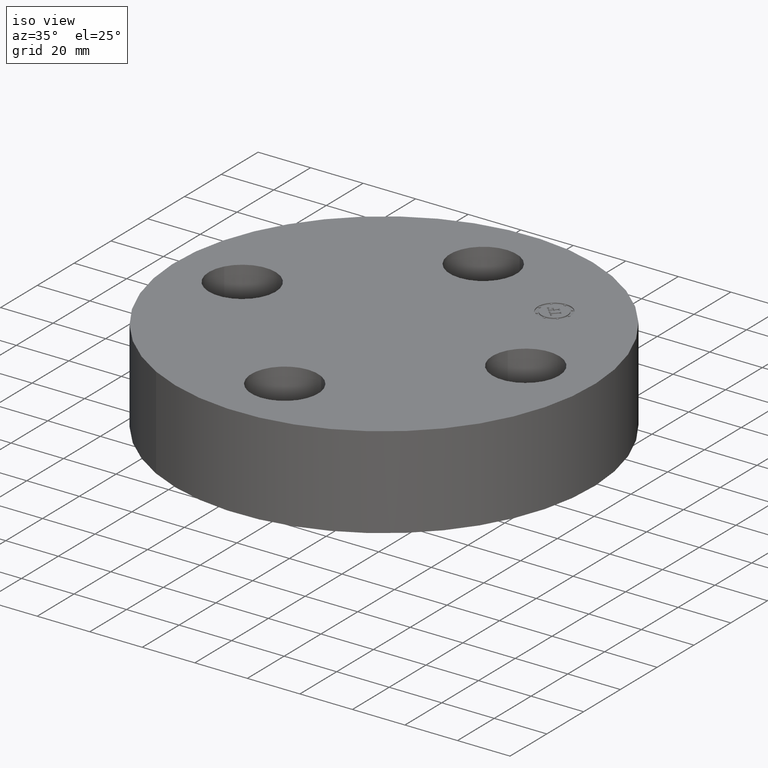
[diagram: clean part render]
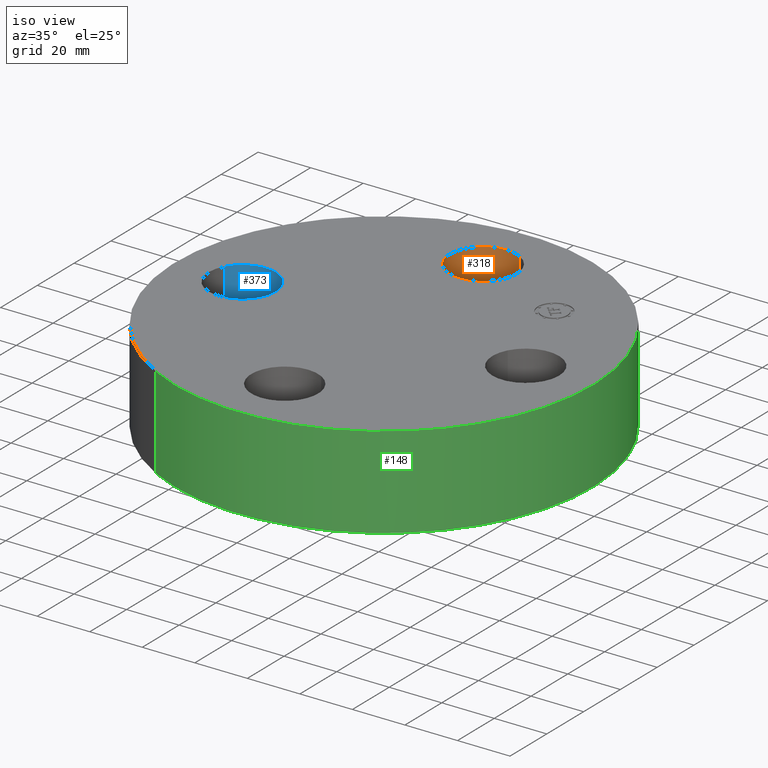
[diagram: same view with three faces highlighted in distinct colors, each labeled with its STEP entity id]
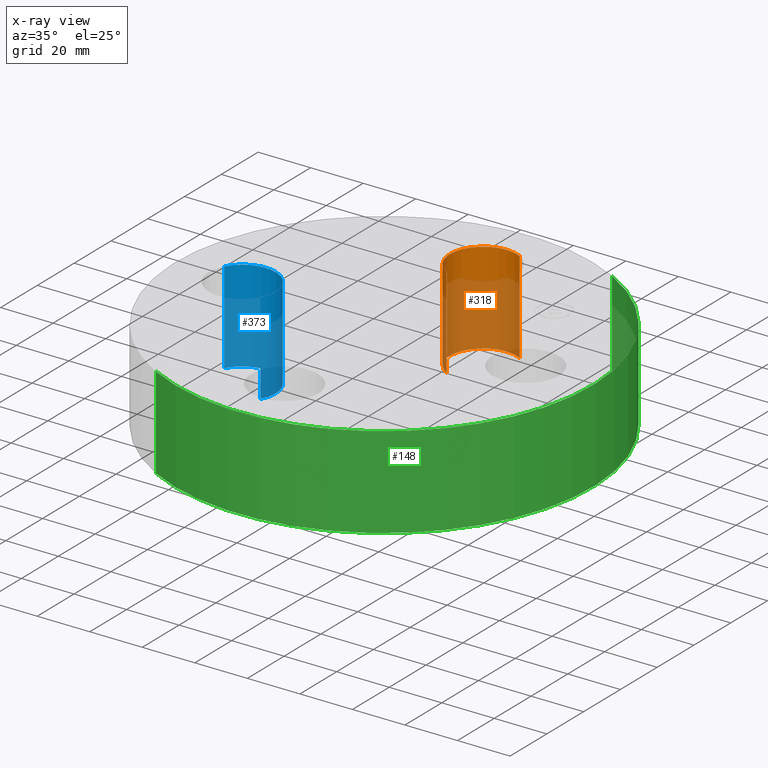
[diagram: x-ray of the same camera — body ghosted, the three highlighted faces saturated]
A machine part, iso view with three faces highlighted in distinct colors.
The next image is the same camera in x-ray (body ghosted, the three faces saturated) — at least one of them is partly hidden behind the body in this view.
Their STEP definitions:

[orange] entity #318 — the highlighted cylindrical surface (partial cylindrical patch) has radius 12.7 mm, axis along (0, 0, -1).
#271=AXIS2_PLACEMENT_3D('Circle Axis2P3D',#269,#270,$) ;
#291=AXIS2_PLACEMENT_3D('Cylinder Axis2P3D',#288,#289,#290) ;
#309=AXIS2_PLACEMENT_3D('Circle Axis2P3D',#307,#308,$) ;
#269=CARTESIAN_POINT('Axis2P3D Location',(-2.79741234551E-016,2.12500000001,0.)) ;
#273=CARTESIAN_POINT('Vertex',(-0.239712769303,1.68620871906,0.)) ;
#275=CARTESIAN_POINT('Vertex',(0.239712769303,2.56379128096,0.)) ;
#288=CARTESIAN_POINT('Axis2P3D Location',(-3.9035616723E-016,2.12500000001,1.37606299213)) ;
#293=CARTESIAN_POINT('Line Origine',(-0.239712769303,1.68620871906,0.690000000003)) ;
#297=CARTESIAN_POINT('Vertex',(-0.239712769303,1.68620871906,1.38000000001)) ;
#300=CARTESIAN_POINT('Line Origine',(0.239712769303,2.56379128096,0.690000000003)) ;
#304=CARTESIAN_POINT('Vertex',(0.239712769303,2.56379128096,1.38000000001)) ;
#307=CARTESIAN_POINT('Axis2P3D Location',(-3.9035616723E-016,2.12500000001,1.38000000001)) ;
#270=DIRECTION('Axis2P3D Direction',(0.,0.,-0.0393700787402)) ;
#289=DIRECTION('Axis2P3D Direction',(0.,0.,-0.0393700787402)) ;
#290=DIRECTION('Axis2P3D XDirection',(0.0188750212049,0.0345504945626,0.)) ;
#294=DIRECTION('Vector Direction',(0.,0.,-0.0393700787402)) ;
#301=DIRECTION('Vector Direction',(0.,0.,-0.0393700787402)) ;
#308=DIRECTION('Axis2P3D Direction',(0.,0.,-0.0393700787402)) ;
#295=VECTOR('Line Direction',#294,0.0393700787402) ;
#302=VECTOR('Line Direction',#301,0.0393700787402) ;
#313=ORIENTED_EDGE('',*,*,#299,.F.) ;
#314=ORIENTED_EDGE('',*,*,#277,.T.) ;
#315=ORIENTED_EDGE('',*,*,#306,.T.) ;
#316=ORIENTED_EDGE('',*,*,#311,.F.) ;
#318=ADVANCED_FACE('PartBody',(#317),#292,.F.) ;
#272=CIRCLE('generated circle',#271,0.500000000002) ;
#310=CIRCLE('generated circle',#309,0.500000000002) ;
#292=CYLINDRICAL_SURFACE('generated cylinder',#291,0.500000000002) ;
#277=EDGE_CURVE('',#274,#276,#272,.T.) ;
#299=EDGE_CURVE('',#274,#298,#296,.F.) ;
#306=EDGE_CURVE('',#276,#305,#303,.F.) ;
#311=EDGE_CURVE('',#298,#305,#310,.T.) ;
#312=EDGE_LOOP('',(#313,#314,#315,#316)) ;
#317=FACE_OUTER_BOUND('',#312,.T.) ;
#296=LINE('Line',#293,#295) ;
#303=LINE('Line',#300,#302) ;
#274=VERTEX_POINT('',#273) ;
#276=VERTEX_POINT('',#275) ;
#298=VERTEX_POINT('',#297) ;
#305=VERTEX_POINT('',#304) ;

[blue] entity #373 — the highlighted cylindrical surface (partial cylindrical patch) has radius 12.7 mm, axis along (-0, 0, -1).
#262=AXIS2_PLACEMENT_3D('Circle Axis2P3D',#260,#261,$) ;
#334=AXIS2_PLACEMENT_3D('Cylinder Axis2P3D',#331,#332,#333) ;
#364=AXIS2_PLACEMENT_3D('Circle Axis2P3D',#362,#363,$) ;
#255=CARTESIAN_POINT('Vertex',(-1.68620871906,-0.239712769303,0.)) ;
#257=CARTESIAN_POINT('Vertex',(-2.56379128096,0.239712769303,0.)) ;
#260=CARTESIAN_POINT('Axis2P3D Location',(-2.12500000001,-1.39870617276E-016,0.)) ;
#331=CARTESIAN_POINT('Axis2P3D Location',(-2.12500000001,-2.6023744482E-016,1.37606299213)) ;
#336=CARTESIAN_POINT('Line Origine',(-1.68620871906,-0.239712769303,0.690000000003)) ;
#340=CARTESIAN_POINT('Vertex',(-1.68620871906,-0.239712769303,1.38000000001)) ;
#343=CARTESIAN_POINT('Line Origine',(-2.56379128096,0.239712769303,0.690000000003)) ;
#347=CARTESIAN_POINT('Vertex',(-2.56379128096,0.239712769303,1.38000000001)) ;
#362=CARTESIAN_POINT('Axis2P3D Location',(-2.12500000001,-2.6023744482E-016,1.38000000001)) ;
#261=DIRECTION('Axis2P3D Direction',(0.,0.,-0.0393700787402)) ;
#332=DIRECTION('Axis2P3D Direction',(-0.,0.,-0.0393700787402)) ;
#333=DIRECTION('Axis2P3D XDirection',(-0.0345504945626,0.0188750212049,0.)) ;
#337=DIRECTION('Vector Direction',(0.,0.,-0.0393700787402)) ;
#344=DIRECTION('Vector Direction',(0.,0.,-0.0393700787402)) ;
#363=DIRECTION('Axis2P3D Direction',(-0.,0.,-0.0393700787402)) ;
#338=VECTOR('Line Direction',#337,0.0393700787402) ;
#345=VECTOR('Line Direction',#344,0.0393700787402) ;
#368=ORIENTED_EDGE('',*,*,#349,.F.) ;
#369=ORIENTED_EDGE('',*,*,#264,.T.) ;
#370=ORIENTED_EDGE('',*,*,#342,.T.) ;
#371=ORIENTED_EDGE('',*,*,#366,.F.) ;
#373=ADVANCED_FACE('PartBody',(#372),#335,.F.) ;
#263=CIRCLE('generated circle',#262,0.500000000002) ;
#365=CIRCLE('generated circle',#364,0.500000000002) ;
#335=CYLINDRICAL_SURFACE('generated cylinder',#334,0.500000000002) ;
#264=EDGE_CURVE('',#258,#256,#263,.T.) ;
#342=EDGE_CURVE('',#256,#341,#339,.F.) ;
#349=EDGE_CURVE('',#258,#348,#346,.F.) ;
#366=EDGE_CURVE('',#348,#341,#365,.T.) ;
#367=EDGE_LOOP('',(#368,#369,#370,#371)) ;
#372=FACE_OUTER_BOUND('',#367,.T.) ;
#339=LINE('Line',#336,#338) ;
#346=LINE('Line',#343,#345) ;
#256=VERTEX_POINT('',#255) ;
#258=VERTEX_POINT('',#257) ;
#341=VERTEX_POINT('',#340) ;
#348=VERTEX_POINT('',#347) ;

[green] entity #148 — the highlighted cylindrical surface (partial cylindrical patch) has radius 79.375 mm, axis along (0, 0, -1).
#95=AXIS2_PLACEMENT_3D('Cylinder Axis2P3D',#92,#93,#94) ;
#134=AXIS2_PLACEMENT_3D('Circle Axis2P3D',#132,#133,$) ;
#139=AXIS2_PLACEMENT_3D('Circle Axis2P3D',#137,#138,$) ;
#92=CARTESIAN_POINT('Axis2P3D Location',(0.,0.,0.565000000002)) ;
#101=CARTESIAN_POINT('Vertex',(-1.49820480814,-2.74244550592,2.79741234551E-016)) ;
#103=CARTESIAN_POINT('Vertex',(1.49820480814,2.74244550592,2.79741234551E-016)) ;
#106=CARTESIAN_POINT('Line Origine',(-1.49820480814,-2.74244550592,0.690000000003)) ;
#110=CARTESIAN_POINT('Vertex',(-1.49820480814,-2.74244550592,1.38000000001)) ;
#117=CARTESIAN_POINT('Vertex',(1.49820480814,2.74244550592,1.38000000001)) ;
#120=CARTESIAN_POINT('Line Origine',(1.49820480814,2.74244550592,0.690000000003)) ;
#132=CARTESIAN_POINT('Axis2P3D Location',(0.,0.,2.79741234551E-016)) ;
#137=CARTESIAN_POINT('Axis2P3D Location',(0.,0.,1.38000000001)) ;
#93=DIRECTION('Axis2P3D Direction',(0.,0.,-0.0393700787402)) ;
#94=DIRECTION('Axis2P3D XDirection',(0.0188750212049,0.0345504945626,0.)) ;
#107=DIRECTION('Vector Direction',(0.,0.,-0.0393700787402)) ;
#121=DIRECTION('Vector Direction',(0.,0.,-0.0393700787402)) ;
#133=DIRECTION('Axis2P3D Direction',(0.,0.,-0.0393700787402)) ;
#138=DIRECTION('Axis2P3D Direction',(0.,0.,-0.0393700787402)) ;
#108=VECTOR('Line Direction',#107,0.0393700787402) ;
#122=VECTOR('Line Direction',#121,0.0393700787402) ;
#143=ORIENTED_EDGE('',*,*,#136,.F.) ;
#144=ORIENTED_EDGE('',*,*,#124,.T.) ;
#145=ORIENTED_EDGE('',*,*,#141,.T.) ;
#146=ORIENTED_EDGE('',*,*,#112,.F.) ;
#148=ADVANCED_FACE('PartBody',(#147),#96,.T.) ;
#135=CIRCLE('generated circle',#134,3.12500000001) ;
#140=CIRCLE('generated circle',#139,3.12500000001) ;
#96=CYLINDRICAL_SURFACE('generated cylinder',#95,3.12500000001) ;
#112=EDGE_CURVE('',#102,#111,#109,.F.) ;
#124=EDGE_CURVE('',#104,#118,#123,.F.) ;
#136=EDGE_CURVE('',#104,#102,#135,.T.) ;
#141=EDGE_CURVE('',#118,#111,#140,.T.) ;
#142=EDGE_LOOP('',(#143,#144,#145,#146)) ;
#147=FACE_OUTER_BOUND('',#142,.T.) ;
#109=LINE('Line',#106,#108) ;
#123=LINE('Line',#120,#122) ;
#102=VERTEX_POINT('',#101) ;
#104=VERTEX_POINT('',#103) ;
#111=VERTEX_POINT('',#110) ;
#118=VERTEX_POINT('',#117) ;